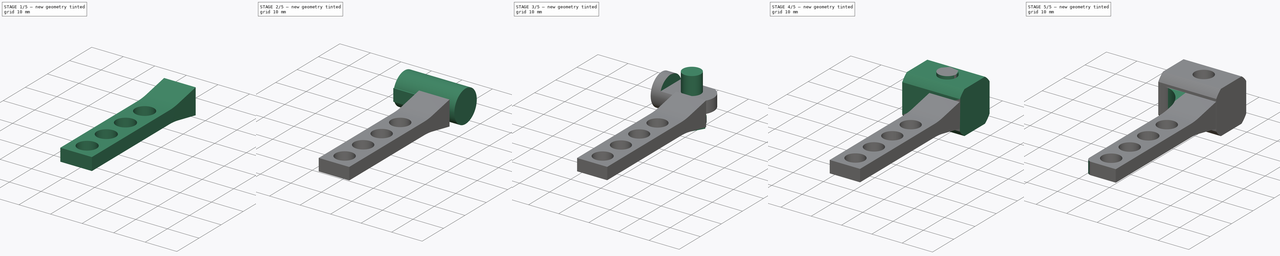
[diagram: build sequence overview — one tinted view per stage of 5, left to right]
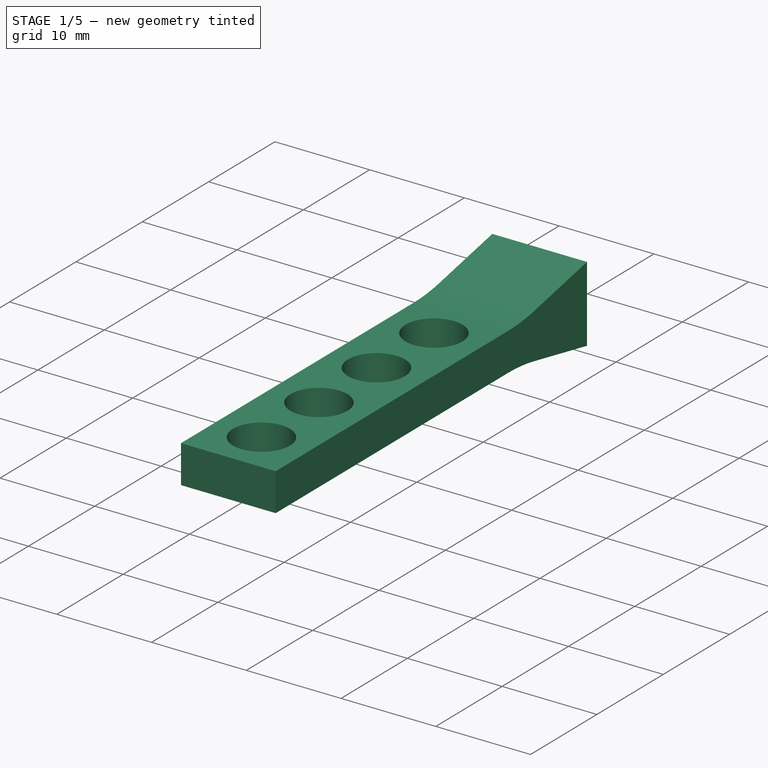
[diagram: stage 1 of 5 — iso view after this stage's code; geometry added in this stage tinted green]
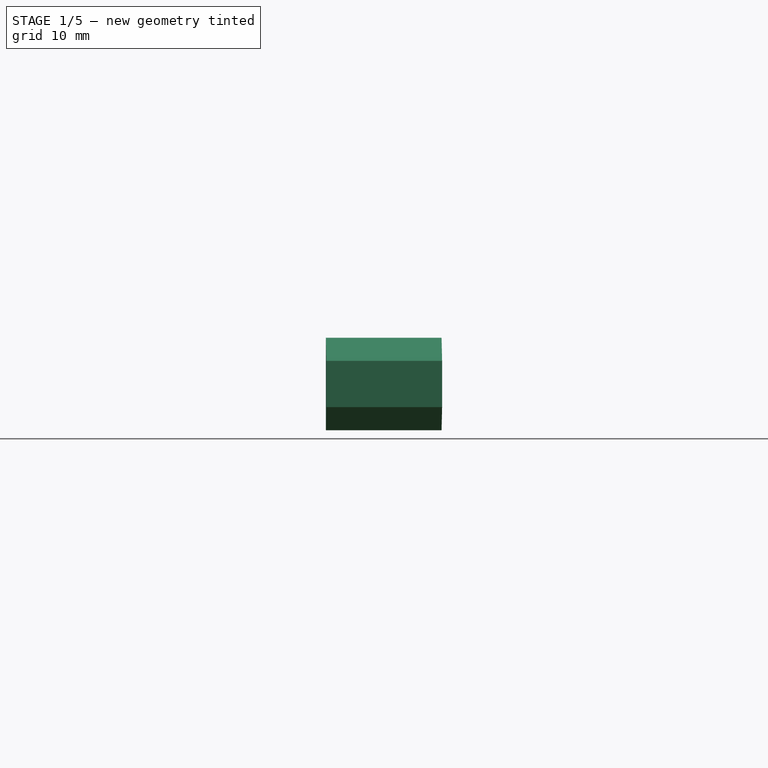
[diagram: stage 1 of 5 — front view after this stage's code; geometry added in this stage tinted green]
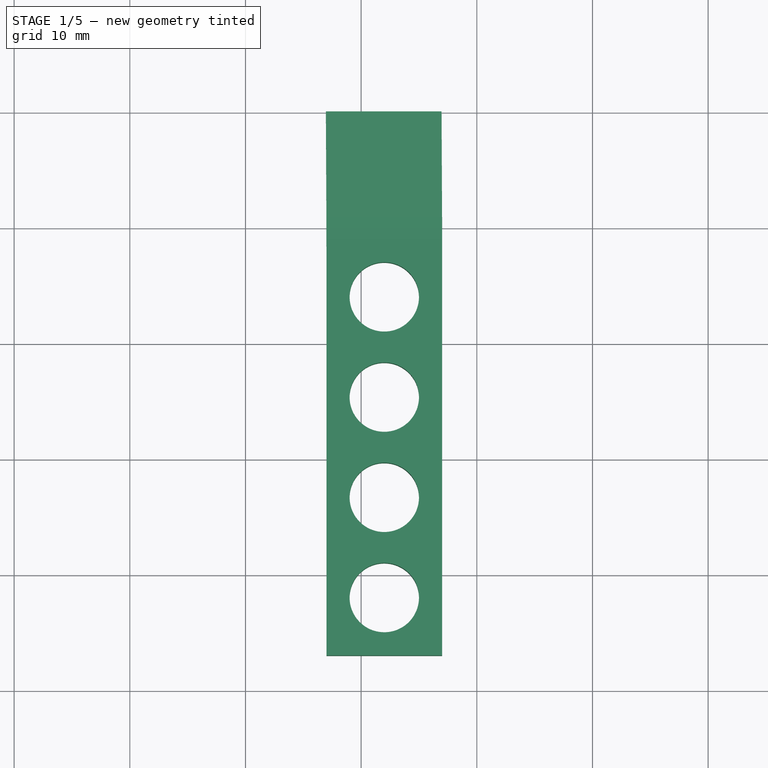
[diagram: stage 1 of 5 — top view after this stage's code; geometry added in this stage tinted green]
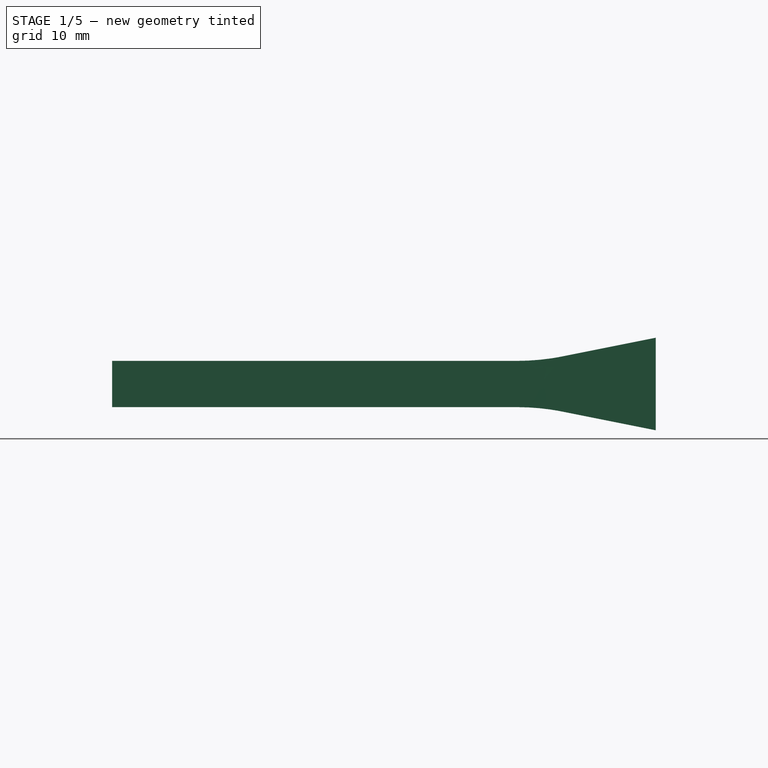
[diagram: stage 1 of 5 — right view after this stage's code; geometry added in this stage tinted green]
FCSTD DOCUMENT  (FreeCAD 0.16R5165 (Git))
Label: frsky_transmitter_balancer
License: All rights reserved
LicenseURL: http://en.wikipedia.org/wiki/All_rights_reserved
objects: Part::Cylinder×5, Sketcher::SketchObject×5, Part::MultiFuse×3, PartDesign::Fillet×3, Part::Box×2, Part::MultiCommon×2, Part::Loft×1, PartDesign::Pad×1, Part::Cut×1, PartDesign::Pocket×1, PartDesign::LinearPattern×1
note: 27 computed .brp shape members not serialized (recipe doc carries the construction recipe); baked Part::Feature solids carry a one-line shape summary decoded from their .brp

FEATURE [Sketcher::SketchObject] Sketch
  Placement = pos=(0,-47,0) rot=(-1,0,0;4.71239rad)
  sketch-geometry (4):
    g0: LineSegment StartX=17 StartY=4 StartZ=0 EndX=7 EndY=4 EndZ=0
    g1: LineSegment StartX=7 StartY=4 StartZ=0 EndX=7 EndY=8 EndZ=0
    g2: LineSegment StartX=7 StartY=8 StartZ=0 EndX=17 EndY=8 EndZ=0
    g3: LineSegment StartX=17 StartY=8 StartZ=0 EndX=17 EndY=4 EndZ=0
  constraints (8):
    c: Coincident(g0,g1)
    c: Coincident(g1,g2)
    c: Coincident(g2,g3)
    c: Coincident(g3,g0)
    c: Horizontal(g0)
    c: Horizontal(g2)
    c: Vertical(g1)
    c: Vertical(g3)
FEATURE [Sketcher::SketchObject] Sketch001
  Placement = pos=(0,-10,0) rot=(1,0,0;1.5708rad)
  sketch-geometry (4):
    g0: LineSegment StartX=17 StartY=4 StartZ=0 EndX=7 EndY=4 EndZ=0
    g1: LineSegment StartX=7 StartY=4 StartZ=0 EndX=7 EndY=8 EndZ=0
    g2: LineSegment StartX=7 StartY=8 StartZ=0 EndX=17 EndY=8 EndZ=0
    g3: LineSegment StartX=17 StartY=8 StartZ=0 EndX=17 EndY=4 EndZ=0
  constraints (8):
    c: Coincident(g0,g1)
    c: Coincident(g1,g2)
    c: Coincident(g2,g3)
    c: Coincident(g3,g0)
    c: Horizontal(g0)
    c: Horizontal(g2)
    c: Vertical(g1)
    c: Vertical(g3)
FEATURE [Sketcher::SketchObject] Sketch002
  Placement = pos=(0,0,0) rot=(1,0,0;1.5708rad)
  sketch-geometry (4):
    g0: LineSegment StartX=16.9513 StartY=2 StartZ=0 EndX=6.95126 EndY=2 EndZ=0
    g1: LineSegment StartX=6.95126 StartY=2 StartZ=0 EndX=6.95126 EndY=10 EndZ=0
    g2: LineSegment StartX=6.95126 StartY=10 StartZ=0 EndX=16.9513 EndY=10 EndZ=0
    g3: LineSegment StartX=16.9513 StartY=10 StartZ=0 EndX=16.9513 EndY=2 EndZ=0
  constraints (8):
    c: Coincident(g0,g1)
    c: Coincident(g1,g2)
    c: Coincident(g2,g3)
    c: Coincident(g3,g0)
    c: Horizontal(g0)
    c: Horizontal(g2)
    c: Vertical(g1)
    c: Vertical(g3)
FEATURE [Part::Loft] Loft
  Closed = false
  Ruled = true
  Sections = -> [Sketch,Sketch001,Sketch002]
  Solid = true
FEATURE [PartDesign::Pocket] Pocket
  Length = 5
  Sketch = -> Sketch006
  Type = 0
FEATURE [PartDesign::LinearPattern] LinearPattern
  Direction = -> Sketch006 [V_Axis]
  Length = 26
  Occurrences = 4
  Originals = -> [Pocket]
FEATURE [PartDesign::Fillet] Fillet
  Base = -> LinearPattern [Edge27,Edge4]
  Radius = 20
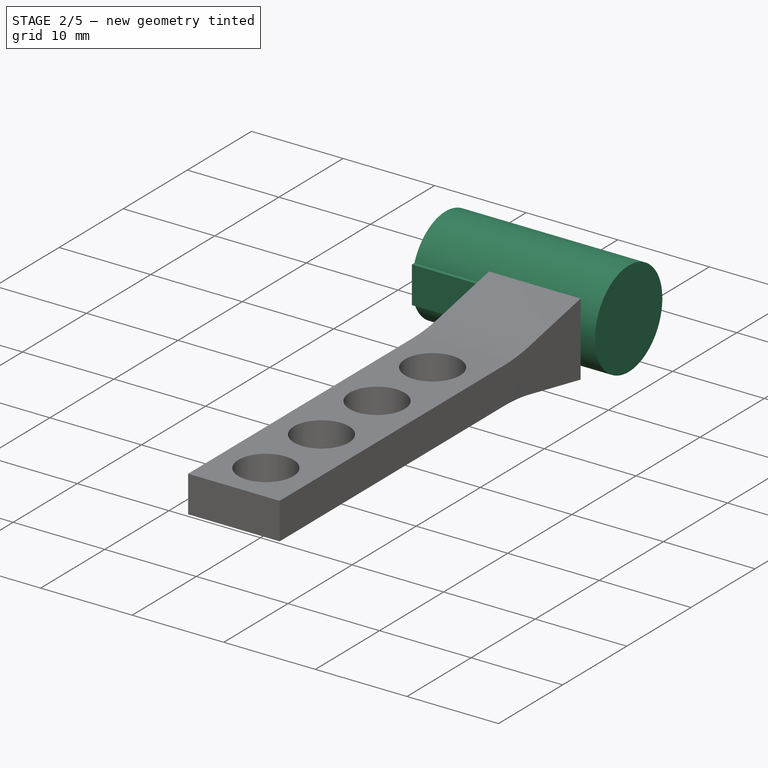
[diagram: stage 2 of 5 — iso view after this stage's code; geometry added in this stage tinted green]
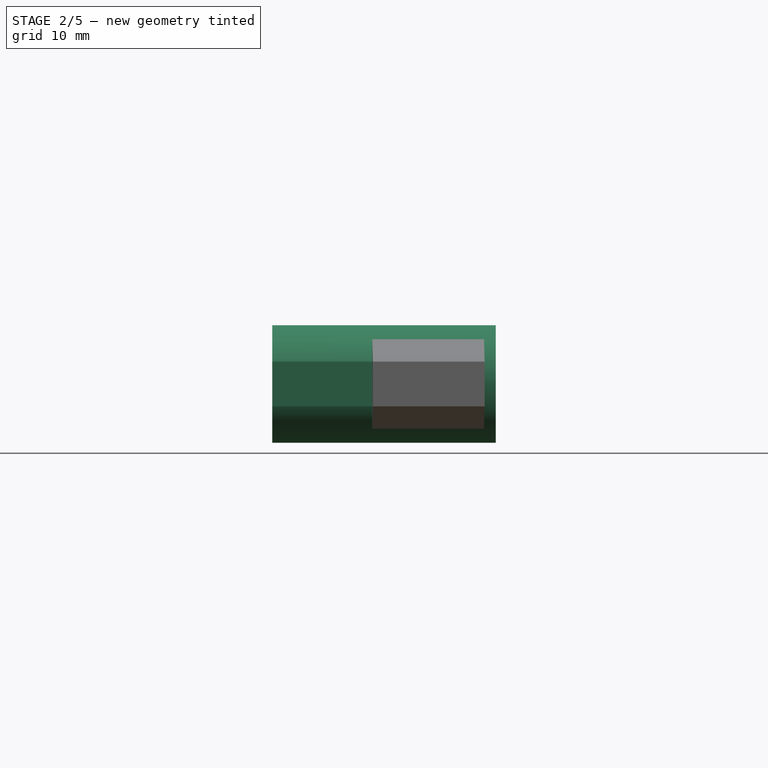
[diagram: stage 2 of 5 — front view after this stage's code; geometry added in this stage tinted green]
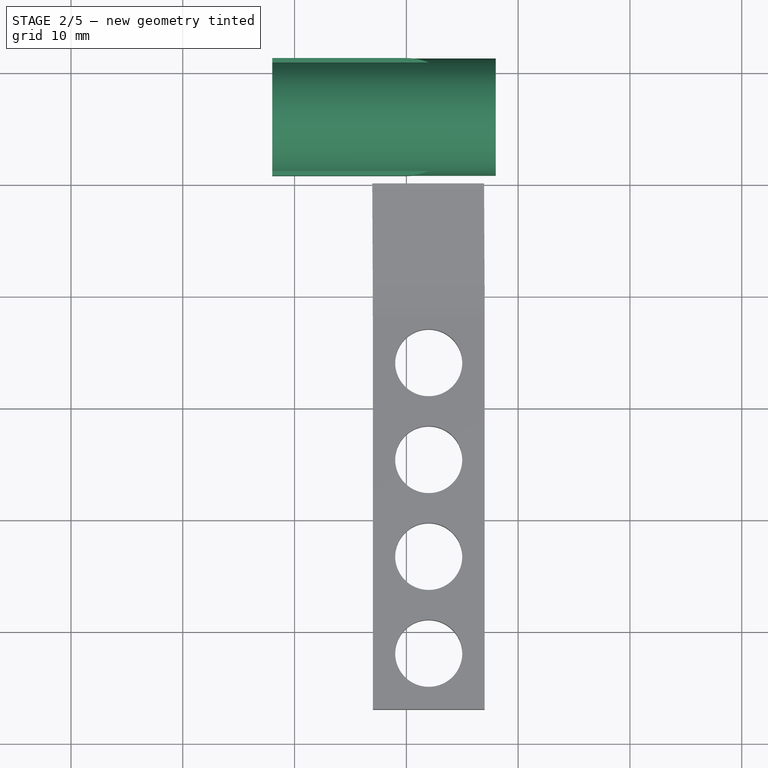
[diagram: stage 2 of 5 — top view after this stage's code; geometry added in this stage tinted green]
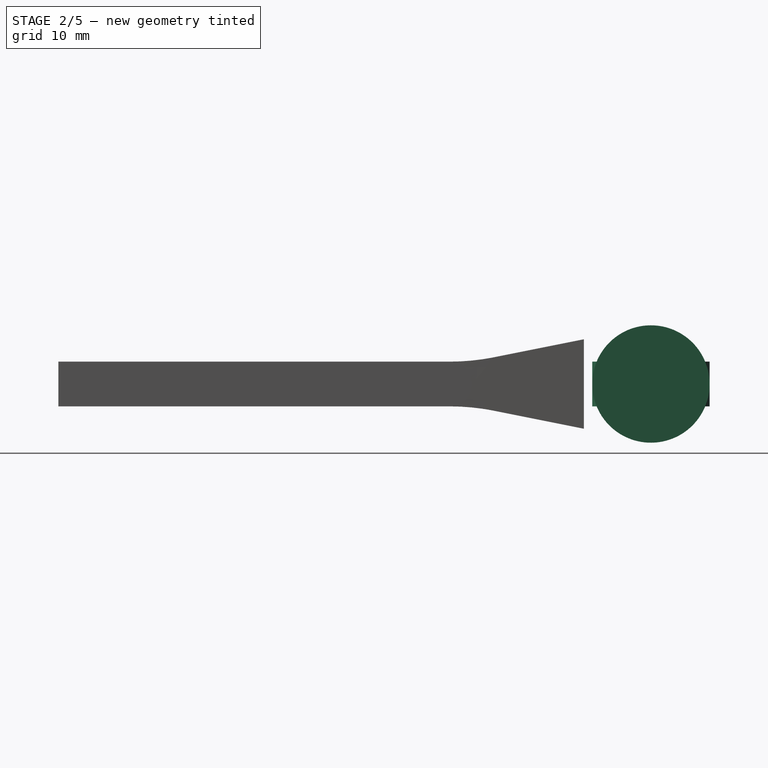
[diagram: stage 2 of 5 — right view after this stage's code; geometry added in this stage tinted green]
FEATURE [Part::Box] Box001  label="Cube001"
  Height = 10.5
  Length = 12
  Placement = pos=(-2,11.25,4) rot=(1,0,0;1.5708rad)
  Width = 4
FEATURE [Part::Cylinder] Cylinder001
  Angle = 180
  Height = 4
  Placement = pos=(10,6,4) rot=(0,0,1;4.71239rad)
  Radius = 5.25
FEATURE [Part::Cylinder] Cylinder003
  Angle = 360
  Height = 20
  Placement = pos=(-2,6,6) rot=(0,1,0;1.5708rad)
  Radius = 5.25
FEATURE [Part::MultiFuse] Fusion
  Shapes = -> [Cylinder001,Box001]
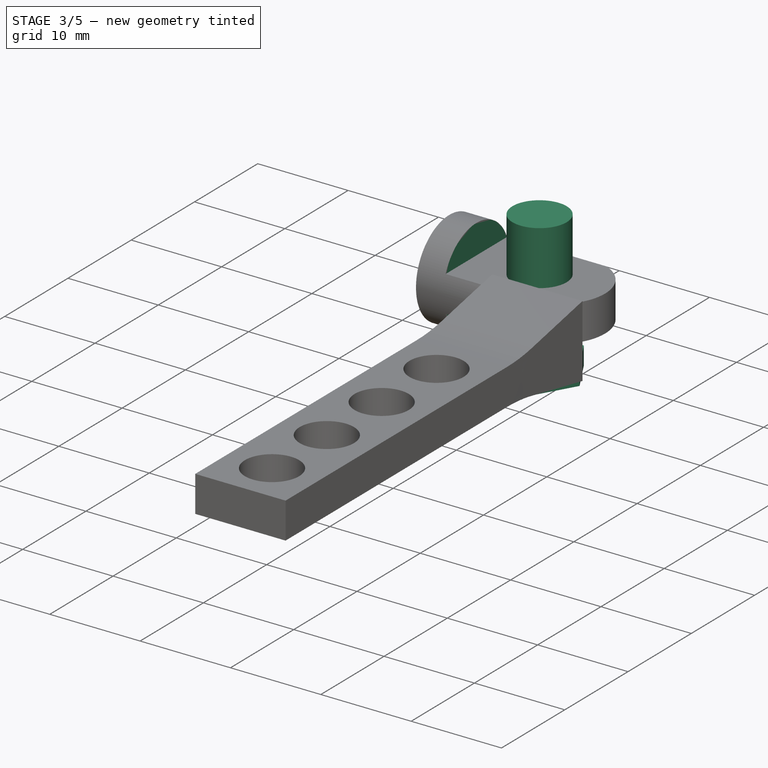
[diagram: stage 3 of 5 — iso view after this stage's code; geometry added in this stage tinted green]
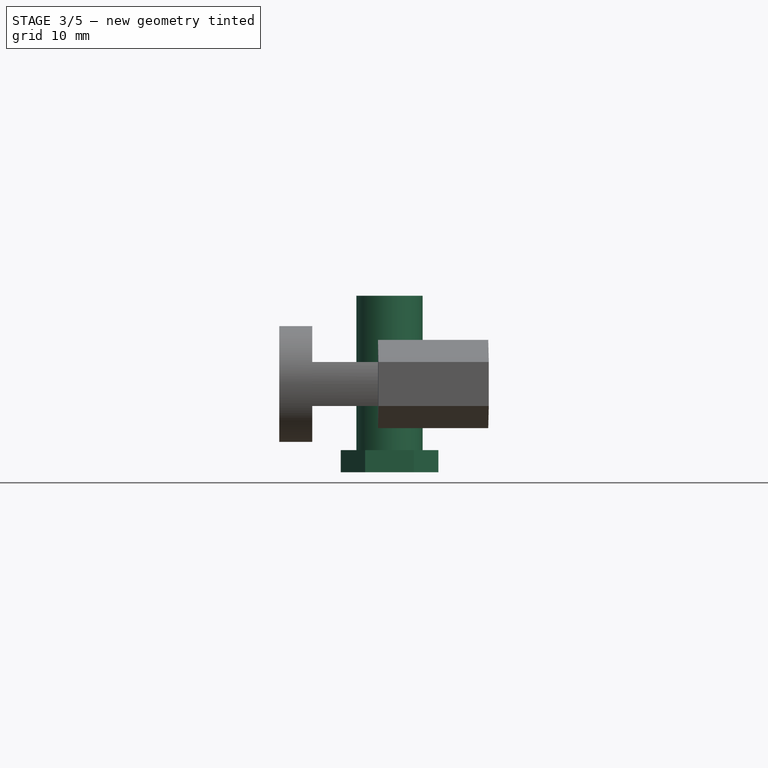
[diagram: stage 3 of 5 — front view after this stage's code; geometry added in this stage tinted green]
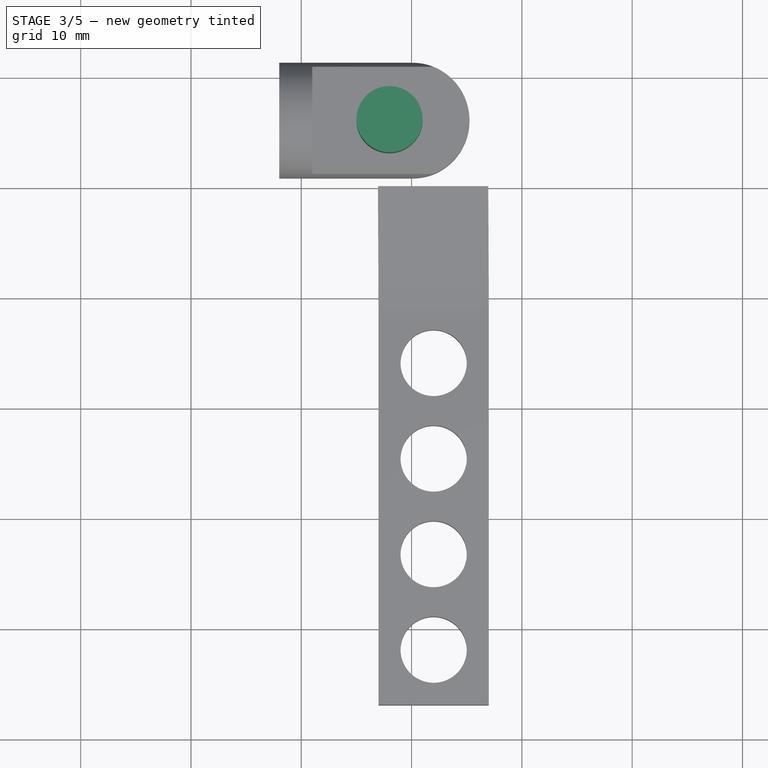
[diagram: stage 3 of 5 — top view after this stage's code; geometry added in this stage tinted green]
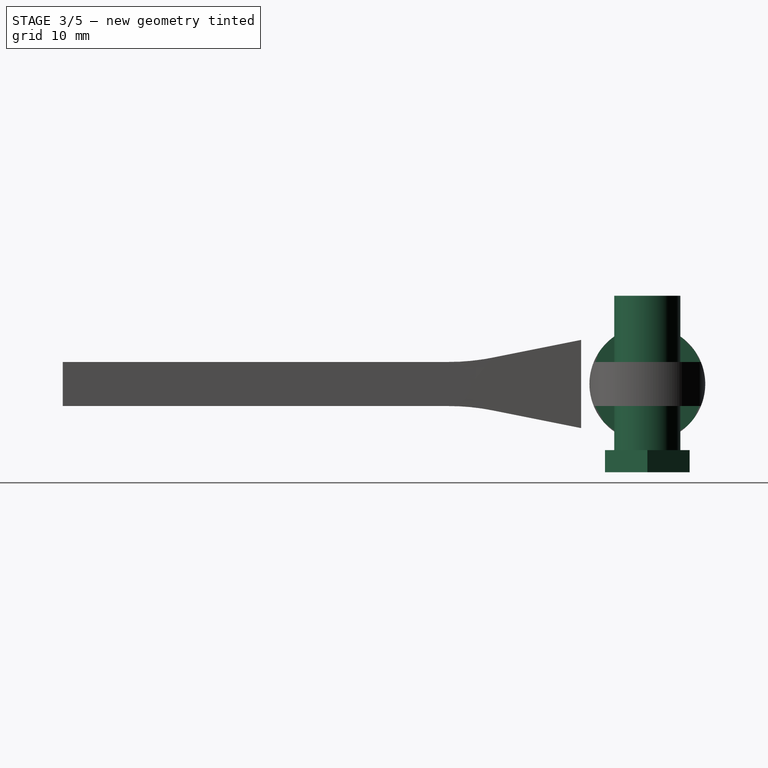
[diagram: stage 3 of 5 — right view after this stage's code; geometry added in this stage tinted green]
FEATURE [Part::Cylinder] Cylinder
  Angle = 360
  Height = 16
  Placement = pos=(8,6,-2) rot=(0,0,1;0rad)
  Radius = 3
FEATURE [Sketcher::SketchObject] Sketch006
  Placement = pos=(0,0,8) rot=(0,0,1;0rad)
  Support = -> Loft [Face3]
  sketch-geometry (1):
    g0: Circle CenterX=12 CenterY=-42 CenterZ=0 NormalX=0 NormalY=0 NormalZ=1 Radius=3
FEATURE [Part::Cylinder] Cylinder002
  Angle = 360
  Height = 3
  Placement = pos=(-2,6,6) rot=(0,1,0;1.5708rad)
  Radius = 5.25
FEATURE [Sketcher::SketchObject] Sketch007
  Placement = pos=(0,0,-2) rot=(0,0,1;0rad)
  sketch-geometry (7):
    g0: LineSegment StartX=10.2131 StartY=2.16676 StartZ=0 EndX=12.4262 EndY=6 EndZ=0
    g1: LineSegment StartX=12.4262 StartY=6 StartZ=0 EndX=10.2131 EndY=9.83324 EndZ=0
    g2: LineSegment StartX=10.2131 StartY=9.83324 StartZ=0 EndX=5.78688 EndY=9.83324 EndZ=0
    g3: LineSegment StartX=5.78688 StartY=9.83324 StartZ=0 EndX=3.57376 EndY=6 EndZ=0
    g4: LineSegment StartX=3.57376 StartY=6 StartZ=0 EndX=5.78688 EndY=2.16676 EndZ=0
    g5: LineSegment StartX=5.78688 StartY=2.16676 StartZ=0 EndX=10.2131 EndY=2.16676 EndZ=0
    g6: Circle [constr] CenterX=8 CenterY=6 CenterZ=0 NormalX=0 NormalY=0 NormalZ=1 Radius=4.42624
  constraints (16):
    c: Coincident(g0,g1)
    c: Coincident(g1,g2)
    c: Coincident(g2,g3)
    c: Coincident(g3,g4)
    c: Coincident(g4,g5)
    c: Coincident(g5,g0)
    c: Equal(g0, g1-g5) x5
    c: PointOnObject(g0,g6)
    c: PointOnObject(g1,g6)
    c: PointOnObject(g2,g6)
    c: PointOnObject(g3,g6)
    c: PointOnObject(g4,g6)
    c: PointOnObject(g5,g6)
    c: Horizontal(g5)
    c: DistanceY(g-1,g6) = 6
    c: DistanceX(g-1,g6) = 8
FEATURE [PartDesign::Pad] Pad
  Length = 2
  Length2 = 100
  Placement = pos=(0,0,-2) rot=(0,0,1;0rad)
  Sketch = -> Sketch007
  Type = 0
FEATURE [Part::MultiCommon] Common
  Shapes = -> [Cylinder003,Fusion]
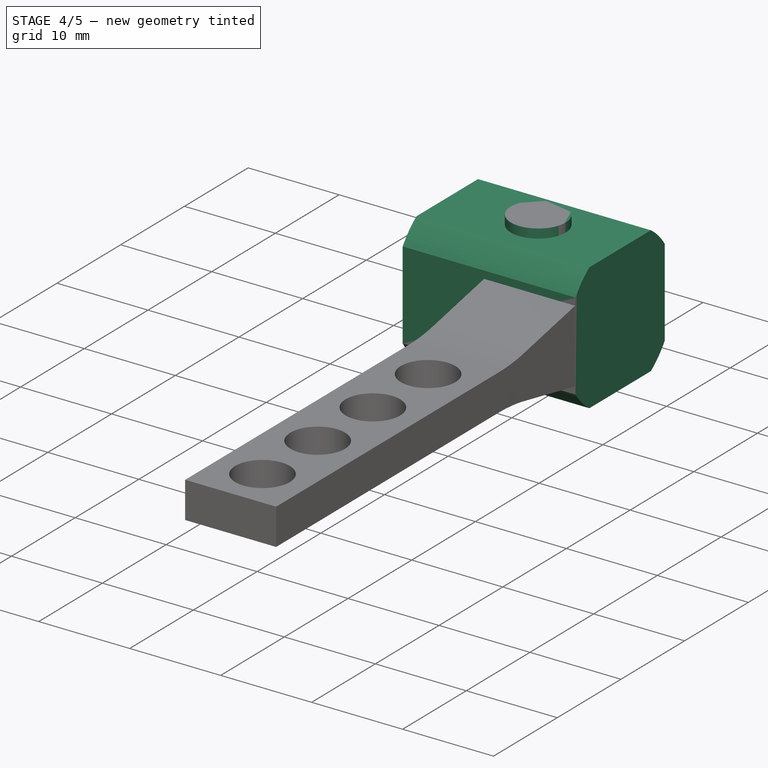
[diagram: stage 4 of 5 — iso view after this stage's code; geometry added in this stage tinted green]
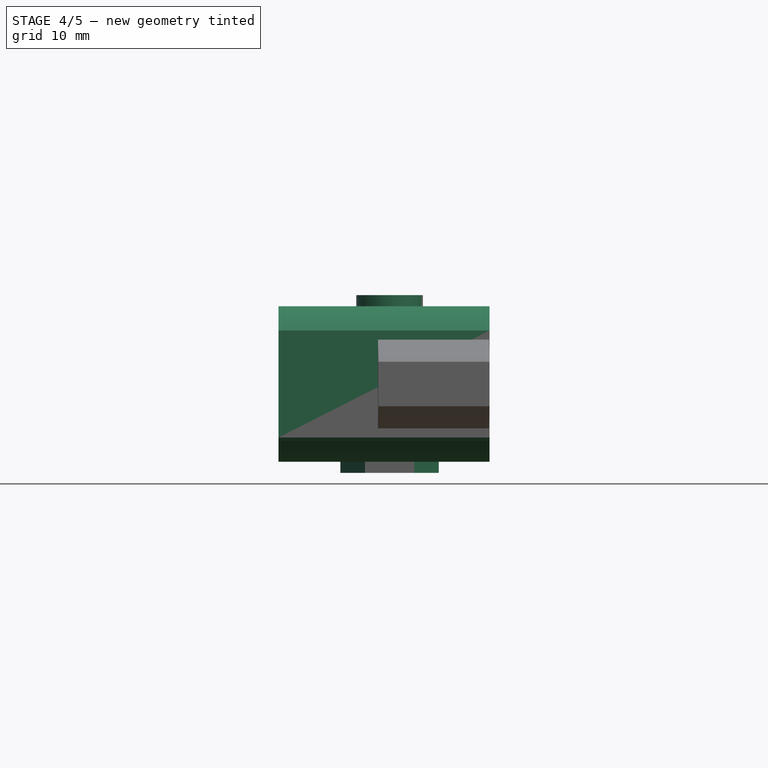
[diagram: stage 4 of 5 — front view after this stage's code; geometry added in this stage tinted green]
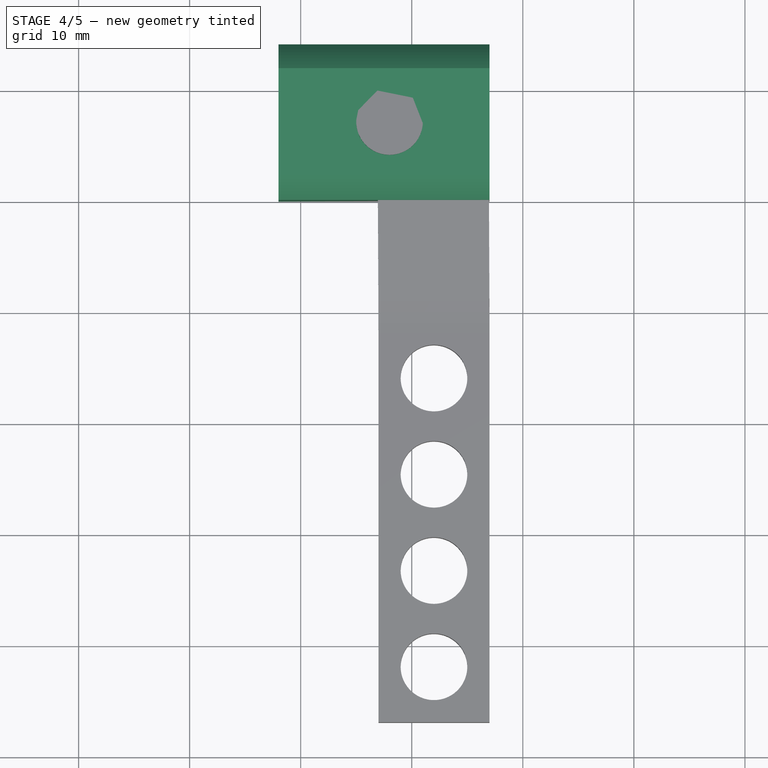
[diagram: stage 4 of 5 — top view after this stage's code; geometry added in this stage tinted green]
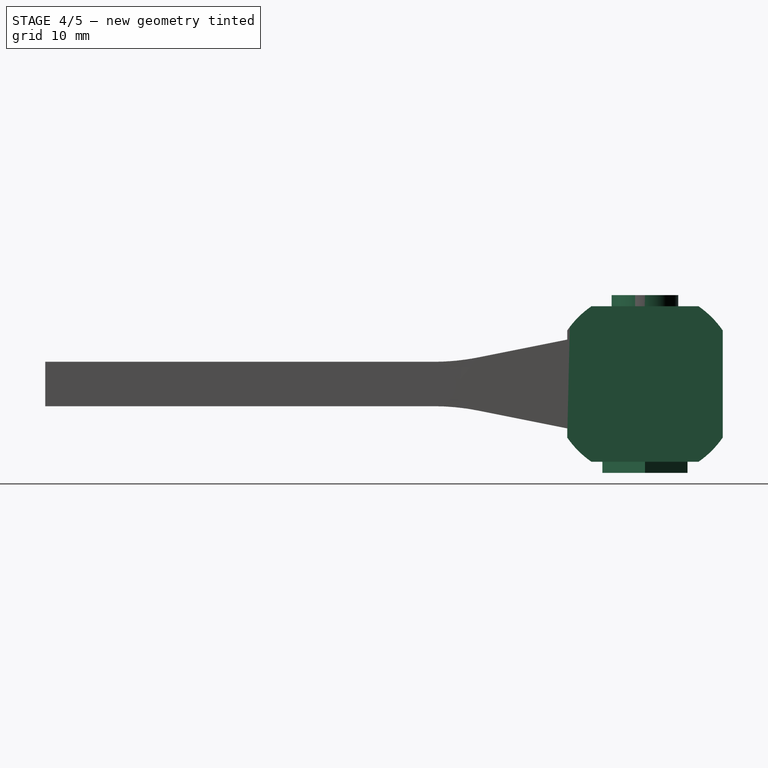
[diagram: stage 4 of 5 — right view after this stage's code; geometry added in this stage tinted green]
FEATURE [Part::Box] Box  label="Cube"
  Height = 14
  Length = 19
  Placement = pos=(-2,0,-1) rot=(0,0,1;0rad)
  Width = 14
FEATURE [Part::Cylinder] Cylinder004
  Angle = 360
  Height = 19
  Placement = pos=(-2,7,6) rot=(0,1,0;1.5708rad)
  Radius = 8.5
FEATURE [Part::MultiCommon] Common001
  Shapes = -> [Cylinder004,Box]
FEATURE [Part::MultiFuse] Fusion001
  Placement = pos=(0,1,0) rot=(0,0,1;0rad)
  Shapes = -> [Common,Cylinder,Pad,Cylinder002]
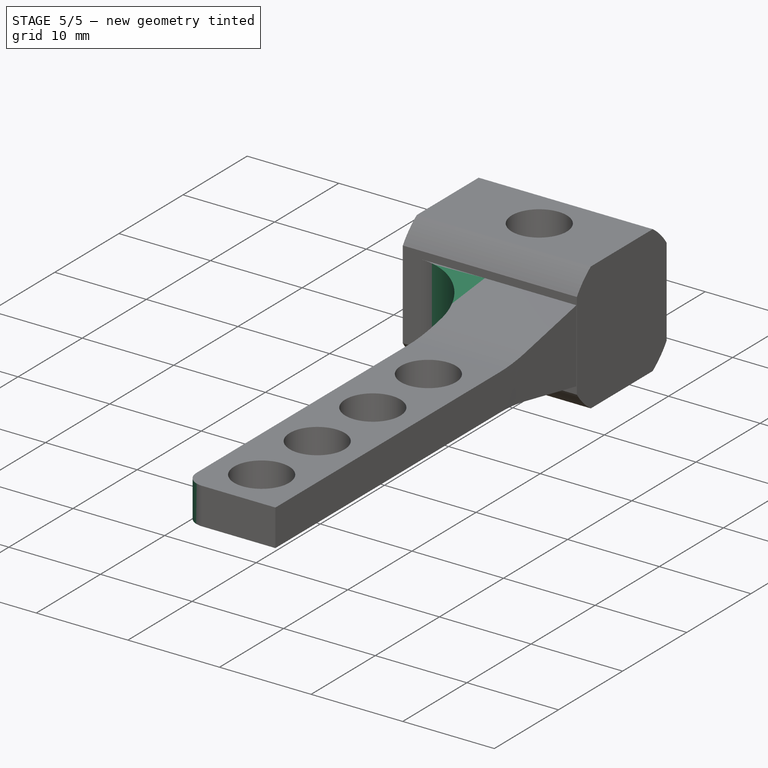
[diagram: stage 5 of 5 — iso view after this stage's code; geometry added in this stage tinted green]
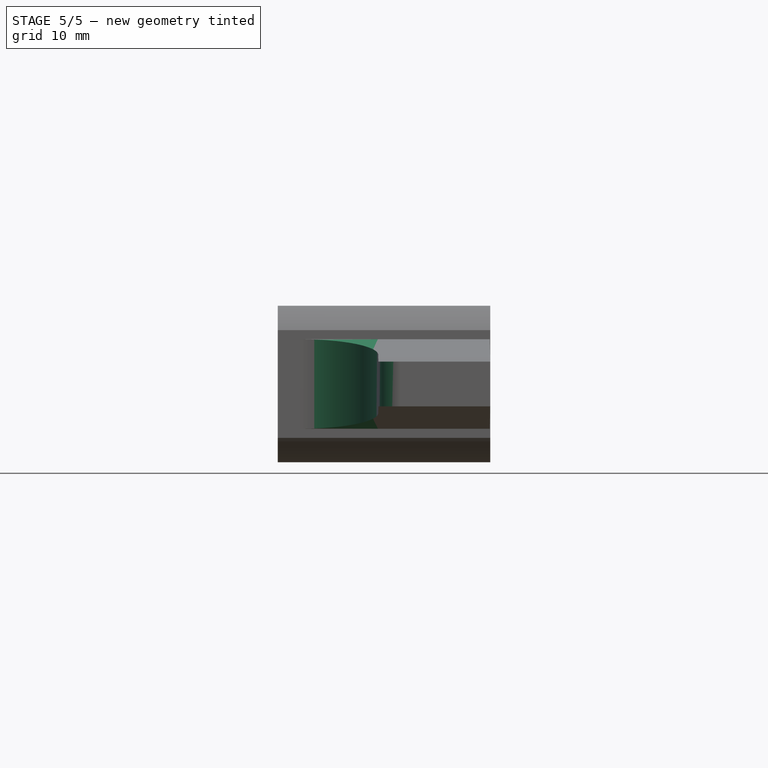
[diagram: stage 5 of 5 — front view after this stage's code; geometry added in this stage tinted green]
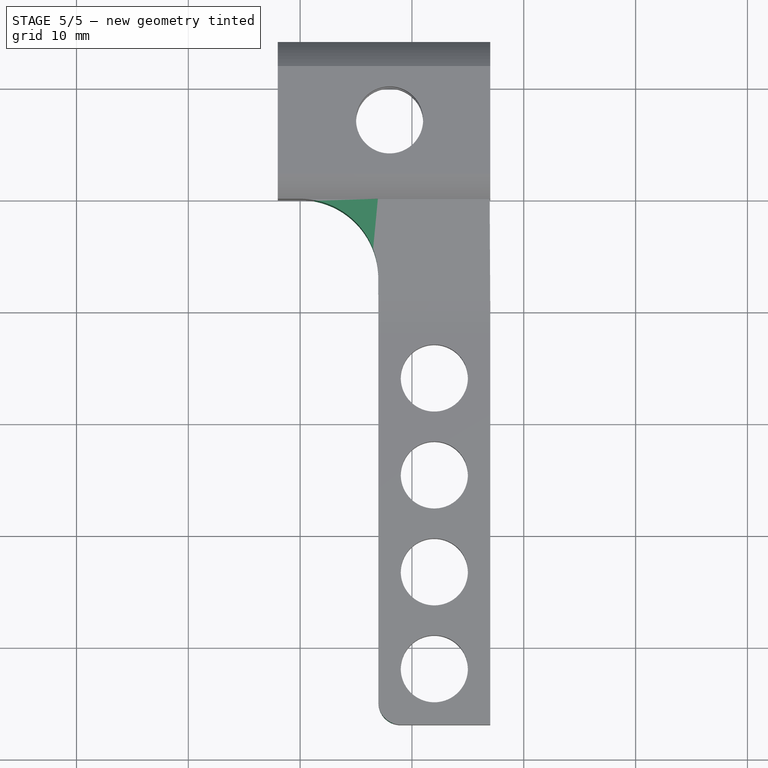
[diagram: stage 5 of 5 — top view after this stage's code; geometry added in this stage tinted green]
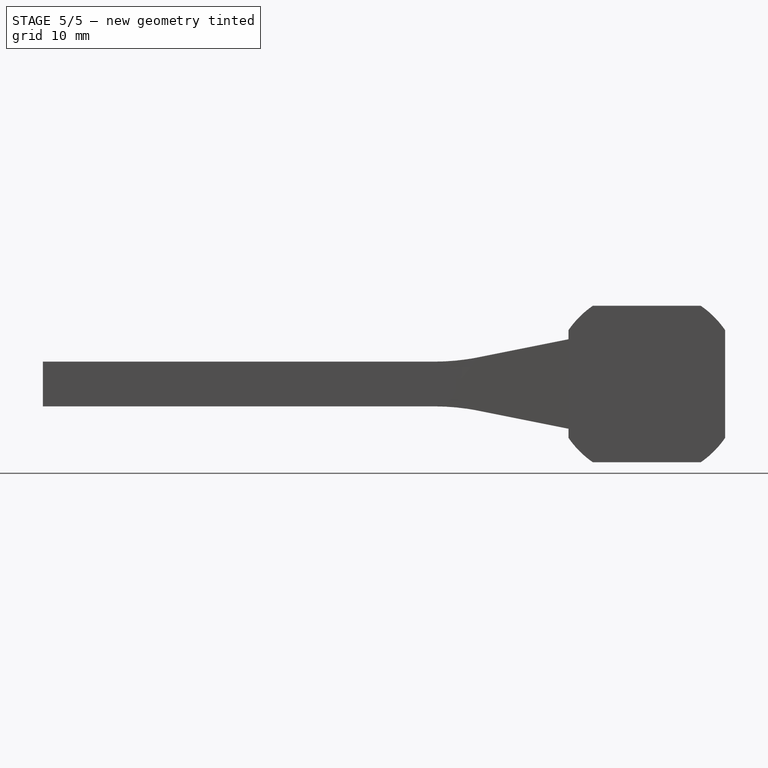
[diagram: stage 5 of 5 — right view after this stage's code; geometry added in this stage tinted green]
FEATURE [Part::Cut] Cut
  Base = -> Common001
  Tool = -> Fusion001
FEATURE [Part::MultiFuse] Fusion002
  Shapes = -> [Cut,Fillet]
FEATURE [PartDesign::Fillet] Fillet001
  Base = -> Fusion002 [Edge32]
  Radius = 7
FEATURE [PartDesign::Fillet] Fillet002
  Base = -> Fillet001 [Edge88]
  Radius = 2
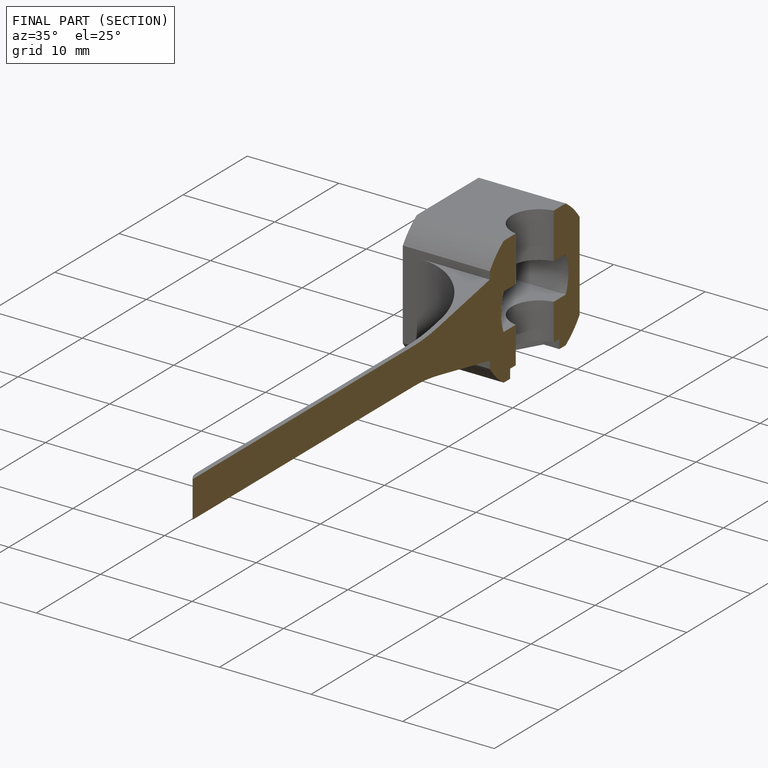
[diagram: finished part — half-section view (interior)]
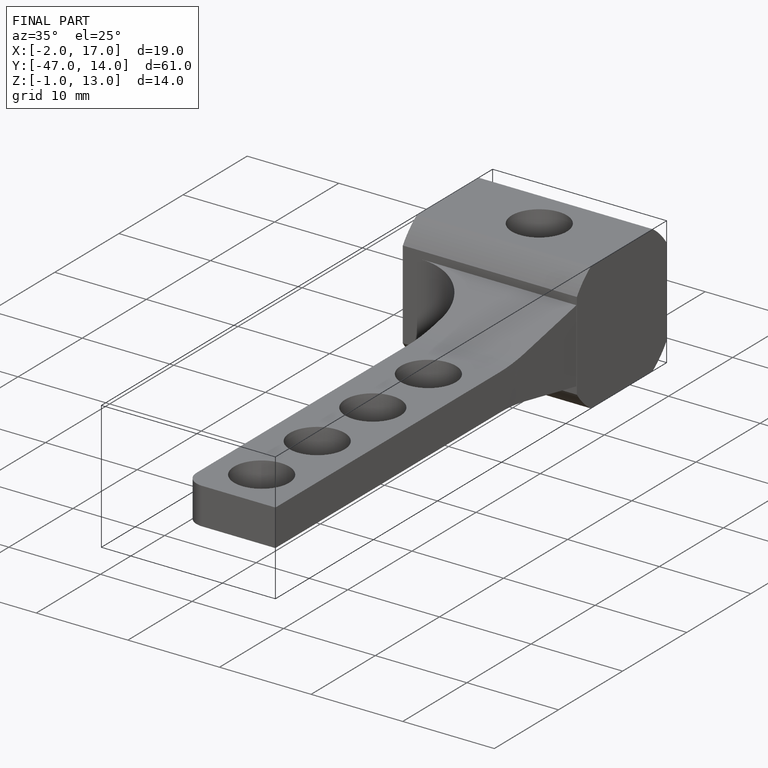
[diagram: finished part — iso view with bounding-box wireframe]
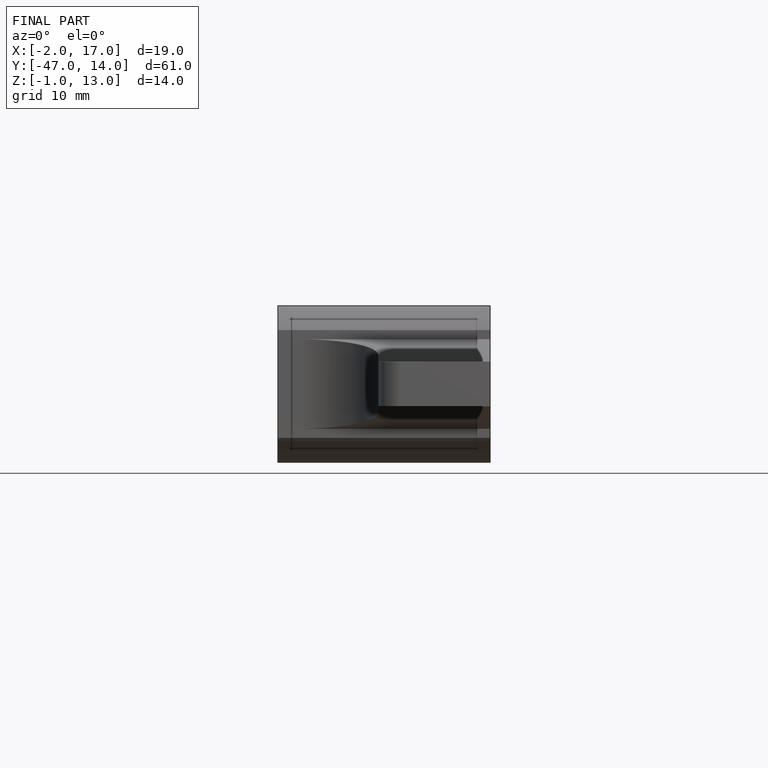
[diagram: finished part — front view with bounding-box wireframe]
